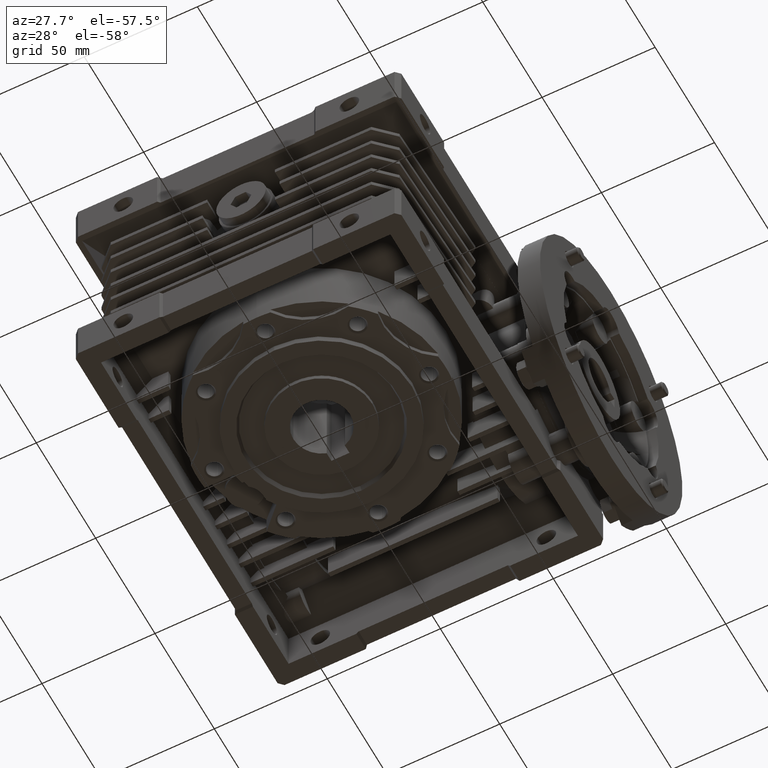
[diagram: clean part render]
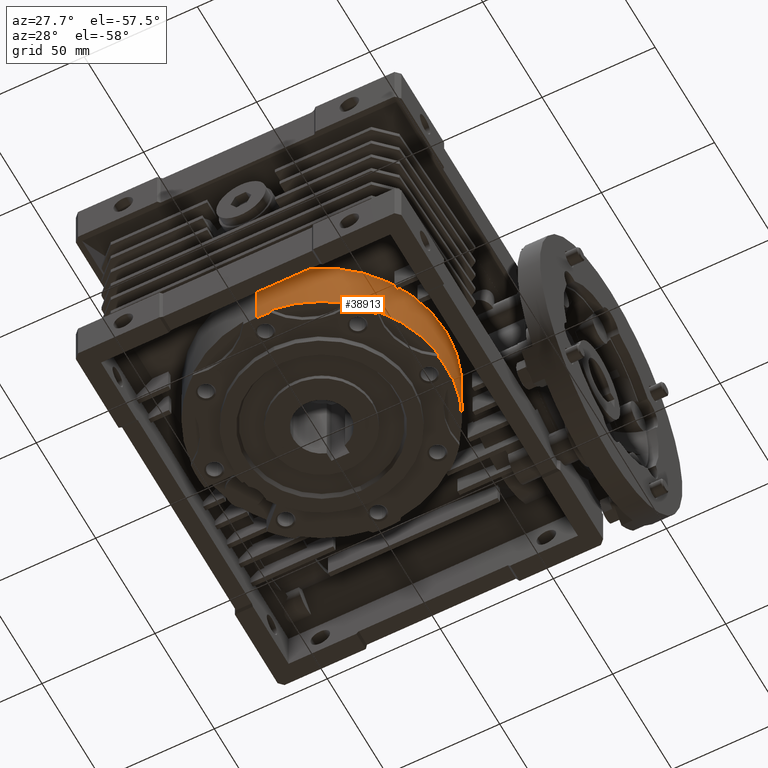
[diagram: same view with one face highlighted and labeled with its STEP entity id]
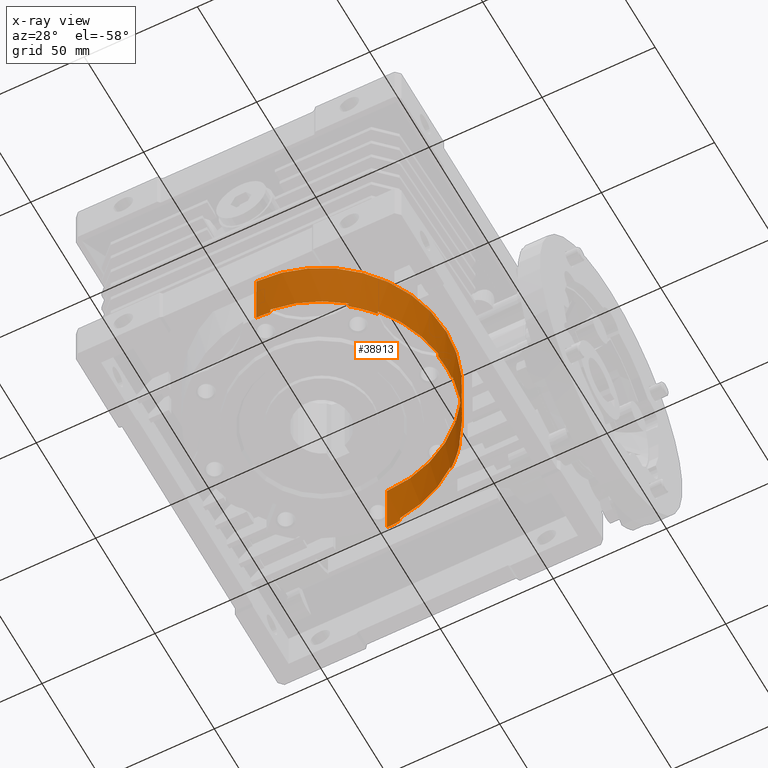
[diagram: x-ray of the same camera — body ghosted, the highlighted face saturated]
A machine part, auxiliary view. The second image highlights one B-rep face of the part: STEP entity #38913.
The next image is the same camera in x-ray: the body ghosted, the highlighted face saturated — about 0% of this face is hidden behind the body in this view.
In plain terms, the highlighted cylindrical surface (partial cylindrical patch) has radius 55 mm, axis along (0, 0, 1).
Its self-contained STEP definition (entity closure, byte-faithful):
#352 = DIRECTION ( 'NONE',  ( 0.000000000000000000, 0.000000000000000000, 1.000000000000000000 ) ) ;
#441 = AXIS2_PLACEMENT_3D ( 'NONE', #21001, #35535, #13907 ) ;
#552 = CARTESIAN_POINT ( 'NONE',  ( -6.735557395310442615E-15, -55.00000000000000000, -26.55000000000000071 ) ) ;
#804 = LINE ( 'NONE', #40243, #10869 ) ;
#863 = ORIENTED_EDGE ( 'NONE', *, *, #29333, .T. ) ;
#1009 = CARTESIAN_POINT ( 'NONE',  ( 42.90242775894350302, -34.41484697610369636, -56.00000000000000000 ) ) ;
#1187 = CARTESIAN_POINT ( 'NONE',  ( 42.90242775894350302, -34.41484697610369636, -51.00000000000000000 ) ) ;
#1257 = DIRECTION ( 'NONE',  ( 0.000000000000000000, 1.000000000000000000, 0.000000000000000000 ) ) ;
#1302 = EDGE_CURVE ( 'NONE', #7043, #4700, #18693, .T. ) ;
#2137 = ORIENTED_EDGE ( 'NONE', *, *, #45674, .T. ) ;
#2182 = EDGE_CURVE ( 'NONE', #32796, #41319, #32491, .T. ) ;
#2815 = ORIENTED_EDGE ( 'NONE', *, *, #39371, .T. ) ;
#3138 = ORIENTED_EDGE ( 'NONE', *, *, #33356, .T. ) ;
#3548 = DIRECTION ( 'NONE',  ( 0.000000000000000000, 1.000000000000000000, 0.000000000000000000 ) ) ;
#3793 = VECTOR ( 'NONE', #13069, 1000.000000000000000 ) ;
#4051 = LINE ( 'NONE', #1009, #37562 ) ;
#4437 = AXIS2_PLACEMENT_3D ( 'NONE', #10093, #28180, #24436 ) ;
#4658 = ORIENTED_EDGE ( 'NONE', *, *, #1302, .T. ) ;
#4676 = DIRECTION ( 'NONE',  ( 0.000000000000000000, 0.000000000000000000, -1.000000000000000000 ) ) ;
#4700 = VERTEX_POINT ( 'NONE', #552 ) ;
#4754 = DIRECTION ( 'NONE',  ( 0.000000000000000000, 0.000000000000000000, 1.000000000000000000 ) ) ;
#4801 = CARTESIAN_POINT ( 'NONE',  ( 0.000000000000000000, 55.00000000000000000, -26.55000000000000071 ) ) ;
#4985 = VECTOR ( 'NONE', #4676, 1000.000000000000000 ) ;
#5669 = DIRECTION ( 'NONE',  ( 0.000000000000000000, 0.000000000000000000, 1.000000000000000000 ) ) ;
#6162 = CIRCLE ( 'NONE', #10613, 55.00000000000000000 ) ;
#6493 = VERTEX_POINT ( 'NONE', #15265 ) ;
#6510 = VERTEX_POINT ( 'NONE', #11725 ) ;
#6672 = FACE_OUTER_BOUND ( 'NONE', #36457, .T. ) ;
#6780 = ORIENTED_EDGE ( 'NONE', *, *, #26866, .T. ) ;
#7043 = VERTEX_POINT ( 'NONE', #4801 ) ;
#7069 = CARTESIAN_POINT ( 'NONE',  ( 0.000000000000000000, 0.000000000000000000, -51.00000000000000000 ) ) ;
#7104 = CARTESIAN_POINT ( 'NONE',  ( 0.000000000000000000, 0.000000000000000000, -51.00000000000000000 ) ) ;
#7362 = DIRECTION ( 'NONE',  ( 0.000000000000000000, 0.000000000000000000, -1.000000000000000000 ) ) ;
#7600 = DIRECTION ( 'NONE',  ( 0.000000000000000000, 1.000000000000000000, 0.000000000000000000 ) ) ;
#7882 = AXIS2_PLACEMENT_3D ( 'NONE', #19082, #22593, #1257 ) ;
#7966 = CARTESIAN_POINT ( 'NONE',  ( 0.000000000000000000, 55.00000000000000000, -56.00000000000000000 ) ) ;
#8043 = VERTEX_POINT ( 'NONE', #19895 ) ;
#8936 = DIRECTION ( 'NONE',  ( 0.000000000000000000, 1.000000000000000000, 0.000000000000000000 ) ) ;
#9083 = CIRCLE ( 'NONE', #30868, 55.00000000000000000 ) ;
#9678 = VERTEX_POINT ( 'NONE', #17953 ) ;
#9891 = ORIENTED_EDGE ( 'NONE', *, *, #22633, .T. ) ;
#9995 = VERTEX_POINT ( 'NONE', #1187 ) ;
#10070 = CARTESIAN_POINT ( 'NONE',  ( 6.001625927414639960, 54.67156926801519745, -56.00000000000000000 ) ) ;
#10093 = CARTESIAN_POINT ( 'NONE',  ( 0.000000000000000000, 0.000000000000000000, -26.55000000000000071 ) ) ;
#10330 = CARTESIAN_POINT ( 'NONE',  ( 54.67156926801519745, -6.001625927414639960, -53.00000000000000000 ) ) ;
#10613 = AXIS2_PLACEMENT_3D ( 'NONE', #7069, #21405, #3548 ) ;
#10635 = VECTOR ( 'NONE', #14836, 1000.000000000000000 ) ;
#10794 = EDGE_CURVE ( 'NONE', #44669, #25971, #21416, .T. ) ;
#10869 = VECTOR ( 'NONE', #40471, 1000.000000000000000 ) ;
#11188 = VECTOR ( 'NONE', #37575, 1000.000000000000000 ) ;
#11245 = CIRCLE ( 'NONE', #33032, 55.00000000000000000 ) ;
#11725 = CARTESIAN_POINT ( 'NONE',  ( 54.67156926801519745, -6.001625927414639960, -51.00000000000000000 ) ) ;
#12024 = CARTESIAN_POINT ( 'NONE',  ( 0.000000000000000000, 0.000000000000000000, -51.00000000000000000 ) ) ;
#12655 = ORIENTED_EDGE ( 'NONE', *, *, #24737, .T. ) ;
#12785 = ORIENTED_EDGE ( 'NONE', *, *, #38857, .T. ) ;
#13048 = ORIENTED_EDGE ( 'NONE', *, *, #31506, .T. ) ;
#13069 = DIRECTION ( 'NONE',  ( 0.000000000000000000, 0.000000000000000000, 1.000000000000000000 ) ) ;
#13210 = DIRECTION ( 'NONE',  ( 0.000000000000000000, 1.000000000000000000, 0.000000000000000000 ) ) ;
#13232 = CARTESIAN_POINT ( 'NONE',  ( 34.41484697610369636, -42.90242775894350302, -56.00000000000000000 ) ) ;
#13907 = DIRECTION ( 'NONE',  ( 0.000000000000000000, 1.000000000000000000, 0.000000000000000000 ) ) ;
#14075 = LINE ( 'NONE', #25814, #4985 ) ;
#14410 = EDGE_CURVE ( 'NONE', #6493, #9995, #4051, .T. ) ;
#14836 = DIRECTION ( 'NONE',  ( 0.000000000000000000, 0.000000000000000000, 1.000000000000000000 ) ) ;
#14875 = VECTOR ( 'NONE', #17035, 1000.000000000000000 ) ;
#15265 = CARTESIAN_POINT ( 'NONE',  ( 42.90242775894350302, -34.41484697610369636, -53.00000000000000000 ) ) ;
#15985 = CARTESIAN_POINT ( 'NONE',  ( 0.000000000000000000, 0.000000000000000000, -53.00000000000000000 ) ) ;
#16263 = CARTESIAN_POINT ( 'NONE',  ( 6.001625927414599992, 54.67156926801519745, -51.00000000000000000 ) ) ;
#16478 = CARTESIAN_POINT ( 'NONE',  ( 34.41484697610379584, 42.90242775894344618, -53.00000000000000000 ) ) ;
#16769 = CARTESIAN_POINT ( 'NONE',  ( 0.000000000000000000, 0.000000000000000000, -53.00000000000000000 ) ) ;
#16861 = ORIENTED_EDGE ( 'NONE', *, *, #10794, .T. ) ;
#16943 = EDGE_CURVE ( 'NONE', #8043, #4700, #43500, .T. ) ;
#17035 = DIRECTION ( 'NONE',  ( 0.000000000000000000, 0.000000000000000000, -1.000000000000000000 ) ) ;
#17224 = CARTESIAN_POINT ( 'NONE',  ( 54.67156926801519745, 6.001625927414609762, -51.00000000000000000 ) ) ;
#17602 = DIRECTION ( 'NONE',  ( 0.000000000000000000, 0.000000000000000000, -1.000000000000000000 ) ) ;
#17953 = CARTESIAN_POINT ( 'NONE',  ( 54.67156926801519745, 6.001625927414609762, -53.00000000000000000 ) ) ;
#17974 = VERTEX_POINT ( 'NONE', #26114 ) ;
#18693 = CIRCLE ( 'NONE', #4437, 55.00000000000000000 ) ;
#19082 = CARTESIAN_POINT ( 'NONE',  ( 0.000000000000000000, 0.000000000000000000, -53.00000000000000000 ) ) ;
#19208 = AXIS2_PLACEMENT_3D ( 'NONE', #16769, #45412, #13210 ) ;
#19895 = CARTESIAN_POINT ( 'NONE',  ( -6.735557395310442615E-15, -55.00000000000000000, -53.00000000000000000 ) ) ;
#20395 = AXIS2_PLACEMENT_3D ( 'NONE', #7104, #28688, #36210 ) ;
#20835 = ORIENTED_EDGE ( 'NONE', *, *, #41823, .T. ) ;
#20866 = LINE ( 'NONE', #45259, #3793 ) ;
#20935 = VERTEX_POINT ( 'NONE', #46012 ) ;
#21001 = CARTESIAN_POINT ( 'NONE',  ( 0.000000000000000000, 0.000000000000000000, -56.00000000000000000 ) ) ;
#21405 = DIRECTION ( 'NONE',  ( 0.000000000000000000, 0.000000000000000000, 1.000000000000000000 ) ) ;
#21416 = CIRCLE ( 'NONE', #7882, 55.00000000000000000 ) ;
#21736 = CARTESIAN_POINT ( 'NONE',  ( 42.90242775894350302, 34.41484697610369636, -51.00000000000000000 ) ) ;
#21766 = EDGE_CURVE ( 'NONE', #26998, #33508, #24984, .T. ) ;
#22168 = DIRECTION ( 'NONE',  ( 0.000000000000000000, 0.000000000000000000, 1.000000000000000000 ) ) ;
#22593 = DIRECTION ( 'NONE',  ( 0.000000000000000000, 0.000000000000000000, 1.000000000000000000 ) ) ;
#22633 = EDGE_CURVE ( 'NONE', #33508, #41749, #40092, .T. ) ;
#22856 = ORIENTED_EDGE ( 'NONE', *, *, #25658, .T. ) ;
#23285 = CARTESIAN_POINT ( 'NONE',  ( 0.000000000000000000, 0.000000000000000000, -51.00000000000000000 ) ) ;
#24436 = DIRECTION ( 'NONE',  ( 0.000000000000000000, 1.000000000000000000, 0.000000000000000000 ) ) ;
#24737 = EDGE_CURVE ( 'NONE', #46124, #20935, #26897, .T. ) ;
#24984 = LINE ( 'NONE', #32503, #31907 ) ;
#25180 = ORIENTED_EDGE ( 'NONE', *, *, #28174, .T. ) ;
#25201 = CIRCLE ( 'NONE', #19208, 55.00000000000000000 ) ;
#25658 = EDGE_CURVE ( 'NONE', #25971, #7043, #40387, .T. ) ;
#25814 = CARTESIAN_POINT ( 'NONE',  ( 54.67156926801519745, -6.001625927414690587, -56.00000000000000000 ) ) ;
#25971 = VERTEX_POINT ( 'NONE', #45994 ) ;
#26049 = CARTESIAN_POINT ( 'NONE',  ( 6.001625927414599992, -54.67156926801519745, -51.00000000000000000 ) ) ;
#26114 = CARTESIAN_POINT ( 'NONE',  ( 34.41484697610379584, 42.90242775894344618, -51.00000000000000000 ) ) ;
#26866 = EDGE_CURVE ( 'NONE', #9678, #44666, #20866, .T. ) ;
#26897 = LINE ( 'NONE', #13232, #14875 ) ;
#26998 = VERTEX_POINT ( 'NONE', #21736 ) ;
#27633 = DIRECTION ( 'NONE',  ( 0.000000000000000000, 1.000000000000000000, 0.000000000000000000 ) ) ;
#28174 = EDGE_CURVE ( 'NONE', #29029, #44669, #42931, .T. ) ;
#28180 = DIRECTION ( 'NONE',  ( 0.000000000000000000, 0.000000000000000000, -1.000000000000000000 ) ) ;
#28688 = DIRECTION ( 'NONE',  ( 0.000000000000000000, 0.000000000000000000, 1.000000000000000000 ) ) ;
#29029 = VERTEX_POINT ( 'NONE', #16263 ) ;
#29333 = EDGE_CURVE ( 'NONE', #44666, #26998, #6162, .T. ) ;
#29395 = CARTESIAN_POINT ( 'NONE',  ( -6.735557395310442615E-15, -55.00000000000000000, -56.00000000000000000 ) ) ;
#30030 = AXIS2_PLACEMENT_3D ( 'NONE', #15985, #352, #7600 ) ;
#30063 = CIRCLE ( 'NONE', #20395, 55.00000000000000000 ) ;
#30764 = CARTESIAN_POINT ( 'NONE',  ( 0.000000000000000000, 0.000000000000000000, -53.00000000000000000 ) ) ;
#30868 = AXIS2_PLACEMENT_3D ( 'NONE', #30764, #37566, #33579 ) ;
#31506 = EDGE_CURVE ( 'NONE', #8043, #32796, #45065, .T. ) ;
#31907 = VECTOR ( 'NONE', #7362, 1000.000000000000000 ) ;
#31947 = ORIENTED_EDGE ( 'NONE', *, *, #14410, .T. ) ;
#31998 = EDGE_CURVE ( 'NONE', #9995, #6510, #30063, .T. ) ;
#32491 = LINE ( 'NONE', #43972, #43491 ) ;
#32503 = CARTESIAN_POINT ( 'NONE',  ( 42.90242775894350302, 34.41484697610364663, -56.00000000000000000 ) ) ;
#32796 = VERTEX_POINT ( 'NONE', #45650 ) ;
#33032 = AXIS2_PLACEMENT_3D ( 'NONE', #23285, #5669, #8936 ) ;
#33133 = VERTEX_POINT ( 'NONE', #10330 ) ;
#33356 = EDGE_CURVE ( 'NONE', #20935, #6493, #9083, .T. ) ;
#33508 = VERTEX_POINT ( 'NONE', #35234 ) ;
#33579 = DIRECTION ( 'NONE',  ( 0.000000000000000000, 1.000000000000000000, 0.000000000000000000 ) ) ;
#34856 = CARTESIAN_POINT ( 'NONE',  ( 6.001625927414599992, 54.67156926801519745, -53.00000000000000000 ) ) ;
#34958 = CARTESIAN_POINT ( 'NONE',  ( 0.000000000000000000, 0.000000000000000000, -53.00000000000000000 ) ) ;
#35143 = ORIENTED_EDGE ( 'NONE', *, *, #31998, .T. ) ;
#35234 = CARTESIAN_POINT ( 'NONE',  ( 42.90242775894350302, 34.41484697610369636, -53.00000000000000000 ) ) ;
#35535 = DIRECTION ( 'NONE',  ( 0.000000000000000000, 0.000000000000000000, 1.000000000000000000 ) ) ;
#36210 = DIRECTION ( 'NONE',  ( 0.000000000000000000, 1.000000000000000000, 0.000000000000000000 ) ) ;
#36233 = DIRECTION ( 'NONE',  ( 0.000000000000000000, 0.000000000000000000, 1.000000000000000000 ) ) ;
#36457 = EDGE_LOOP ( 'NONE', ( #42214, #13048, #43168, #2137, #12655, #3138, #31947, #35143, #2815, #12785, #6780, #863, #45169, #9891, #42953, #20835, #25180, #16861, #22856, #4658 ) ) ;
#36458 = AXIS2_PLACEMENT_3D ( 'NONE', #34958, #46169, #27633 ) ;
#37224 = CIRCLE ( 'NONE', #43219, 55.00000000000000000 ) ;
#37562 = VECTOR ( 'NONE', #36233, 1000.000000000000000 ) ;
#37566 = DIRECTION ( 'NONE',  ( 0.000000000000000000, 0.000000000000000000, 1.000000000000000000 ) ) ;
#37575 = DIRECTION ( 'NONE',  ( 0.000000000000000000, 0.000000000000000000, 1.000000000000000000 ) ) ;
#38857 = EDGE_CURVE ( 'NONE', #33133, #9678, #25201, .T. ) ;
#38913 = ADVANCED_FACE ( 'NONE', ( #6672 ), #42584, .T. ) ;
#39371 = EDGE_CURVE ( 'NONE', #6510, #33133, #14075, .T. ) ;
#40092 = CIRCLE ( 'NONE', #36458, 55.00000000000000000 ) ;
#40243 = CARTESIAN_POINT ( 'NONE',  ( 34.41484697610374610, 42.90242775894344618, -56.00000000000000000 ) ) ;
#40387 = LINE ( 'NONE', #7966, #11188 ) ;
#40471 = DIRECTION ( 'NONE',  ( 0.000000000000000000, 0.000000000000000000, 1.000000000000000000 ) ) ;
#40715 = DIRECTION ( 'NONE',  ( 0.000000000000000000, 1.000000000000000000, 0.000000000000000000 ) ) ;
#41144 = CARTESIAN_POINT ( 'NONE',  ( 34.41484697610369636, -42.90242775894350302, -51.00000000000000000 ) ) ;
#41319 = VERTEX_POINT ( 'NONE', #26049 ) ;
#41749 = VERTEX_POINT ( 'NONE', #16478 ) ;
#41823 = EDGE_CURVE ( 'NONE', #17974, #29029, #11245, .T. ) ;
#42214 = ORIENTED_EDGE ( 'NONE', *, *, #16943, .F. ) ;
#42584 = CYLINDRICAL_SURFACE ( 'NONE', #441, 55.00000000000000000 ) ;
#42931 = LINE ( 'NONE', #10070, #44291 ) ;
#42953 = ORIENTED_EDGE ( 'NONE', *, *, #44341, .T. ) ;
#43168 = ORIENTED_EDGE ( 'NONE', *, *, #2182, .T. ) ;
#43219 = AXIS2_PLACEMENT_3D ( 'NONE', #12024, #22168, #40715 ) ;
#43491 = VECTOR ( 'NONE', #4754, 1000.000000000000000 ) ;
#43500 = LINE ( 'NONE', #29395, #10635 ) ;
#43972 = CARTESIAN_POINT ( 'NONE',  ( 6.001625927414599992, -54.67156926801519745, -56.00000000000000000 ) ) ;
#44291 = VECTOR ( 'NONE', #17602, 1000.000000000000000 ) ;
#44341 = EDGE_CURVE ( 'NONE', #41749, #17974, #804, .T. ) ;
#44666 = VERTEX_POINT ( 'NONE', #17224 ) ;
#44669 = VERTEX_POINT ( 'NONE', #34856 ) ;
#45065 = CIRCLE ( 'NONE', #30030, 55.00000000000000000 ) ;
#45169 = ORIENTED_EDGE ( 'NONE', *, *, #21766, .T. ) ;
#45259 = CARTESIAN_POINT ( 'NONE',  ( 54.67156926801519745, 6.001625927414619532, -56.00000000000000000 ) ) ;
#45412 = DIRECTION ( 'NONE',  ( 0.000000000000000000, 0.000000000000000000, 1.000000000000000000 ) ) ;
#45650 = CARTESIAN_POINT ( 'NONE',  ( 6.001625927414599992, -54.67156926801519745, -53.00000000000000000 ) ) ;
#45674 = EDGE_CURVE ( 'NONE', #41319, #46124, #37224, .T. ) ;
#45994 = CARTESIAN_POINT ( 'NONE',  ( 0.000000000000000000, 55.00000000000000000, -53.00000000000000000 ) ) ;
#46012 = CARTESIAN_POINT ( 'NONE',  ( 34.41484697610369636, -42.90242775894350302, -53.00000000000000000 ) ) ;
#46124 = VERTEX_POINT ( 'NONE', #41144 ) ;
#46169 = DIRECTION ( 'NONE',  ( 0.000000000000000000, 0.000000000000000000, 1.000000000000000000 ) ) ;